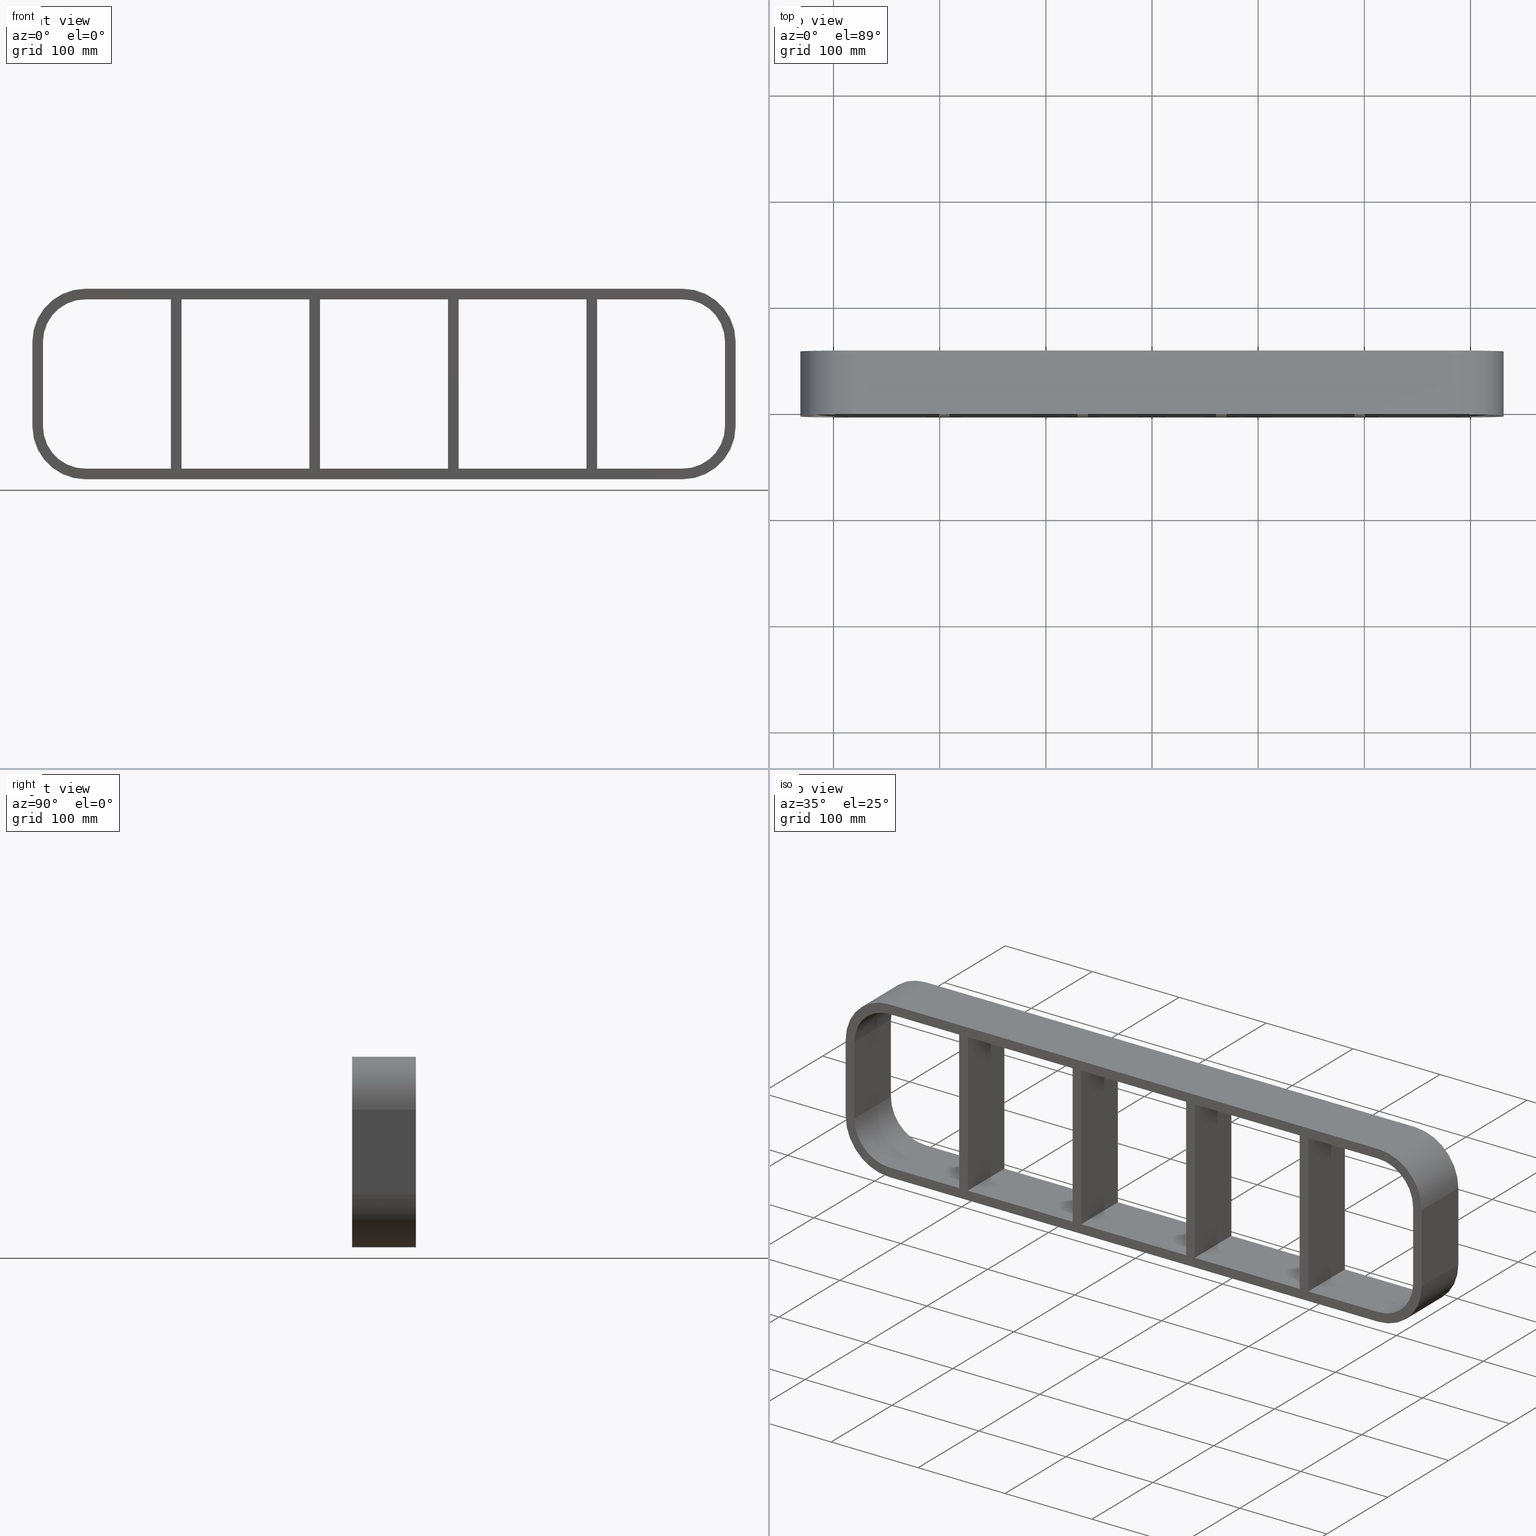
[diagram: canonical four-view strip — front | top / right | iso, engineering-drawing reading convention]
A machine part, canonical four-view strip (front | top / right | iso — engineering-drawing reading convention). The complete STEP part file that produces these views, byte-faithful:
ISO-10303-21;
HEADER;
/****************************************************************
 * Generated by software with PDElib inside                    *
 * PDElib Version v51a, created Wed 11/30/2011                  *
 * ITI Transcendata (http://www.transcendata.com/)              *
 ****************************************************************/
FILE_DESCRIPTION((''),'2;1');
FILE_NAME('N:\\Projects\\Ongoing_Projects\\12403 Transit Designer\\Product-data\\Product Data\\Transit designer Cad Generator\\CreatedFiles\\STEP\\SRCR40-4X5.stp','2014-10-31T13:08:50',(''),(''),'Autodesk Inventor 2013','Autodesk Inventor 2013','');
FILE_SCHEMA(('AUTOMOTIVE_DESIGN { 1 0 10303 214 1 1 1 1 }'));
ENDSEC;
DATA;
#5=APPLICATION_CONTEXT('automotive design');
#6=APPLICATION_PROTOCOL_DEFINITION('International Standard','automotive_design',2001,#5);
#7=PRODUCT_CONTEXT('',#5,'mechanical');
#8=PRODUCT('GH-ISO','GH-ISO',$,(#7));
#9=PRODUCT_RELATED_PRODUCT_CATEGORY('part',$,(#8));
#10=PRODUCT_DEFINITION_FORMATION('',$,#8);
#11=PRODUCT_DEFINITION_CONTEXT('part definition',#5,'design');
#12=PRODUCT_DEFINITION('',$,#10,#11);
#18=(NAMED_UNIT(*)PLANE_ANGLE_UNIT()SI_UNIT($,.RADIAN.));
#19=DIMENSIONAL_EXPONENTS(0.0,0.0,0.0,0.0,0.0,0.0,0.0);
#20=PLANE_ANGLE_MEASURE_WITH_UNIT(PLANE_ANGLE_MEASURE(0.0174532925),#18);
#24=(CONVERSION_BASED_UNIT('DEGREE',#20)NAMED_UNIT(#19)PLANE_ANGLE_UNIT());
#28=(NAMED_UNIT(*)SI_UNIT($,.STERADIAN.)SOLID_ANGLE_UNIT());
#32=(LENGTH_UNIT()NAMED_UNIT(*)SI_UNIT(.MILLI.,.METRE.));
#34=UNCERTAINTY_MEASURE_WITH_UNIT(LENGTH_MEASURE(0.01),#32,'DISTANCE_ACCURACY_VALUE','');
#36=(GEOMETRIC_REPRESENTATION_CONTEXT(3)GLOBAL_UNCERTAINTY_ASSIGNED_CONTEXT((#34))GLOBAL_UNIT_ASSIGNED_CONTEXT((#24,#28,#32))REPRESENTATION_CONTEXT('None','None'));
#37=AXIS2_PLACEMENT_3D('',#38,#39,#40);
#38=CARTESIAN_POINT('',(0.0,0.0,0.0));
#39=DIRECTION('',(0.0,0.0,1.0));
#40=DIRECTION('',(1.0,0.0,0.0));
#41=SHAPE_REPRESENTATION('',(#37),#36);
#42=PRODUCT_DEFINITION_SHAPE('','',#12);
#43=SHAPE_DEFINITION_REPRESENTATION(#42,#41);
#49=(NAMED_UNIT(*)PLANE_ANGLE_UNIT()SI_UNIT($,.RADIAN.));
#50=DIMENSIONAL_EXPONENTS(0.0,0.0,0.0,0.0,0.0,0.0,0.0);
#51=PLANE_ANGLE_MEASURE_WITH_UNIT(PLANE_ANGLE_MEASURE(0.0174532925),#49);
#55=(CONVERSION_BASED_UNIT('DEGREE',#51)NAMED_UNIT(#50)PLANE_ANGLE_UNIT());
#59=(NAMED_UNIT(*)SI_UNIT($,.STERADIAN.)SOLID_ANGLE_UNIT());
#63=(LENGTH_UNIT()NAMED_UNIT(*)SI_UNIT(.MILLI.,.METRE.));
#65=UNCERTAINTY_MEASURE_WITH_UNIT(LENGTH_MEASURE(0.000001),#63,'DISTANCE_ACCURACY_VALUE','');
#67=(GEOMETRIC_REPRESENTATION_CONTEXT(3)GLOBAL_UNCERTAINTY_ASSIGNED_CONTEXT((#65))GLOBAL_UNIT_ASSIGNED_CONTEXT((#55,#59,#63))REPRESENTATION_CONTEXT('','3D'));
#68=CARTESIAN_POINT('',(190.74999999999852,-3.0,-79.750000000000014));
#69=DIRECTION('',(-1.0,0.0,0.0));
#70=DIRECTION('',(0.0,0.0,1.0));
#71=AXIS2_PLACEMENT_3D('',#68,#69,#70);
#72=PLANE('',#71);
#73=CARTESIAN_POINT('',(190.74999999999852,-3.0,-79.750000000000014));
#74=VERTEX_POINT('',#73);
#75=CARTESIAN_POINT('',(190.74999999999852,-3.0,79.750000000000014));
#76=VERTEX_POINT('',#75);
#77=CARTESIAN_POINT('',(190.74999999999852,-3.0,-79.750000000000014));
#78=DIRECTION('',(0.0,0.0,1.0));
#79=VECTOR('',#78,159.50000000000003);
#80=LINE('',#77,#79);
#81=EDGE_CURVE('',#74,#76,#80,.T.);
#82=ORIENTED_EDGE('',*,*,#81,.T.);
#83=CARTESIAN_POINT('',(190.74999999999852,57.0,79.750000000000014));
#84=VERTEX_POINT('',#83);
#85=CARTESIAN_POINT('',(190.74999999999852,57.000000000000007,79.750000000000014));
#86=DIRECTION('',(0.0,-1.0,0.0));
#87=VECTOR('',#86,60.000000000000007);
#88=LINE('',#85,#87);
#89=EDGE_CURVE('',#84,#76,#88,.T.);
#90=ORIENTED_EDGE('',*,*,#89,.F.);
#91=CARTESIAN_POINT('',(190.74999999999852,57.0,-79.750000000000014));
#92=VERTEX_POINT('',#91);
#93=CARTESIAN_POINT('',(190.74999999999852,57.0,-79.750000000000014));
#94=DIRECTION('',(0.0,0.0,1.0));
#95=VECTOR('',#94,159.50000000000003);
#96=LINE('',#93,#95);
#97=EDGE_CURVE('',#92,#84,#96,.T.);
#98=ORIENTED_EDGE('',*,*,#97,.F.);
#99=CARTESIAN_POINT('',(190.74999999999852,-3.0,-79.750000000000014));
#100=DIRECTION('',(0.0,1.0,0.0));
#101=VECTOR('',#100,60.000000000000007);
#102=LINE('',#99,#101);
#103=EDGE_CURVE('',#74,#92,#102,.T.);
#104=ORIENTED_EDGE('',*,*,#103,.F.);
#105=EDGE_LOOP('',(#82,#90,#98,#104));
#106=FACE_OUTER_BOUND('',#105,.T.);
#107=ADVANCED_FACE('',(#106),#72,.T.);
#108=CARTESIAN_POINT('',(200.74999999999278,-3.0,79.750000000000014));
#109=DIRECTION('',(1.0,0.0,0.0));
#110=DIRECTION('',(0.0,0.0,-1.0));
#111=AXIS2_PLACEMENT_3D('',#108,#109,#110);
#112=PLANE('',#111);
#113=CARTESIAN_POINT('',(200.74999999999278,-3.0,79.750000000000014));
#114=VERTEX_POINT('',#113);
#115=CARTESIAN_POINT('',(200.74999999999278,-3.0,-79.749999999985107));
#116=VERTEX_POINT('',#115);
#117=CARTESIAN_POINT('',(200.74999999999278,-3.0,79.750000000000014));
#118=DIRECTION('',(0.0,0.0,-1.0));
#119=VECTOR('',#118,159.49999999998514);
#120=LINE('',#117,#119);
#121=EDGE_CURVE('',#114,#116,#120,.T.);
#122=ORIENTED_EDGE('',*,*,#121,.T.);
#123=CARTESIAN_POINT('',(200.74999999999278,57.0,-79.749999999985107));
#124=VERTEX_POINT('',#123);
#125=CARTESIAN_POINT('',(200.74999999999278,57.000000000000007,-79.750000000000014));
#126=DIRECTION('',(0.0,-1.0,0.0));
#127=VECTOR('',#126,60.000000000000007);
#128=LINE('',#125,#127);
#129=EDGE_CURVE('',#124,#116,#128,.T.);
#130=ORIENTED_EDGE('',*,*,#129,.F.);
#131=CARTESIAN_POINT('',(200.74999999999278,57.0,79.750000000000014));
#132=VERTEX_POINT('',#131);
#133=CARTESIAN_POINT('',(200.74999999999278,57.0,79.750000000000014));
#134=DIRECTION('',(0.0,0.0,-1.0));
#135=VECTOR('',#134,159.49999999998514);
#136=LINE('',#133,#135);
#137=EDGE_CURVE('',#132,#124,#136,.T.);
#138=ORIENTED_EDGE('',*,*,#137,.F.);
#139=CARTESIAN_POINT('',(200.74999999999278,-3.0,79.750000000000014));
#140=DIRECTION('',(0.0,1.0,0.0));
#141=VECTOR('',#140,60.000000000000007);
#142=LINE('',#139,#141);
#143=EDGE_CURVE('',#114,#132,#142,.T.);
#144=ORIENTED_EDGE('',*,*,#143,.F.);
#145=EDGE_LOOP('',(#122,#130,#138,#144));
#146=FACE_OUTER_BOUND('',#145,.T.);
#147=ADVANCED_FACE('',(#146),#112,.T.);
#148=CARTESIAN_POINT('',(60.249999999998494,-3.0,-79.750000000000014));
#149=DIRECTION('',(-1.0,0.0,0.0));
#150=DIRECTION('',(0.0,0.0,1.0));
#151=AXIS2_PLACEMENT_3D('',#148,#149,#150);
#152=PLANE('',#151);
#153=CARTESIAN_POINT('',(60.249999999998494,-3.0,-79.750000000000014));
#154=VERTEX_POINT('',#153);
#155=CARTESIAN_POINT('',(60.249999999998494,-3.0,79.750000000000014));
#156=VERTEX_POINT('',#155);
#157=CARTESIAN_POINT('',(60.249999999998494,-3.0,-79.750000000000014));
#158=DIRECTION('',(0.0,0.0,1.0));
#159=VECTOR('',#158,159.50000000000003);
#160=LINE('',#157,#159);
#161=EDGE_CURVE('',#154,#156,#160,.T.);
#162=ORIENTED_EDGE('',*,*,#161,.T.);
#163=CARTESIAN_POINT('',(60.249999999998494,57.0,79.750000000000014));
#164=VERTEX_POINT('',#163);
#165=CARTESIAN_POINT('',(60.249999999998494,57.000000000000007,79.750000000000014));
#166=DIRECTION('',(0.0,-1.0,0.0));
#167=VECTOR('',#166,60.000000000000007);
#168=LINE('',#165,#167);
#169=EDGE_CURVE('',#164,#156,#168,.T.);
#170=ORIENTED_EDGE('',*,*,#169,.F.);
#171=CARTESIAN_POINT('',(60.249999999998494,57.0,-79.750000000000014));
#172=VERTEX_POINT('',#171);
#173=CARTESIAN_POINT('',(60.249999999998494,57.0,-79.750000000000014));
#174=DIRECTION('',(0.0,0.0,1.0));
#175=VECTOR('',#174,159.50000000000003);
#176=LINE('',#173,#175);
#177=EDGE_CURVE('',#172,#164,#176,.T.);
#178=ORIENTED_EDGE('',*,*,#177,.F.);
#179=CARTESIAN_POINT('',(60.249999999998494,-3.0,-79.750000000000014));
#180=DIRECTION('',(0.0,1.0,0.0));
#181=VECTOR('',#180,60.000000000000007);
#182=LINE('',#179,#181);
#183=EDGE_CURVE('',#154,#172,#182,.T.);
#184=ORIENTED_EDGE('',*,*,#183,.F.);
#185=EDGE_LOOP('',(#162,#170,#178,#184));
#186=FACE_OUTER_BOUND('',#185,.T.);
#187=ADVANCED_FACE('',(#186),#152,.T.);
#188=CARTESIAN_POINT('',(70.249999999992738,-3.0,79.750000000000014));
#189=DIRECTION('',(1.0,0.0,0.0));
#190=DIRECTION('',(0.0,0.0,-1.0));
#191=AXIS2_PLACEMENT_3D('',#188,#189,#190);
#192=PLANE('',#191);
#193=CARTESIAN_POINT('',(70.249999999992738,-3.0,79.750000000000014));
#194=VERTEX_POINT('',#193);
#195=CARTESIAN_POINT('',(70.249999999992738,-3.0,-79.749999999985107));
#196=VERTEX_POINT('',#195);
#197=CARTESIAN_POINT('',(70.249999999992738,-3.0,79.750000000000014));
#198=DIRECTION('',(0.0,0.0,-1.0));
#199=VECTOR('',#198,159.49999999998514);
#200=LINE('',#197,#199);
#201=EDGE_CURVE('',#194,#196,#200,.T.);
#202=ORIENTED_EDGE('',*,*,#201,.T.);
#203=CARTESIAN_POINT('',(70.249999999992738,57.0,-79.749999999985107));
#204=VERTEX_POINT('',#203);
#205=CARTESIAN_POINT('',(70.249999999992738,57.000000000000007,-79.750000000000014));
#206=DIRECTION('',(0.0,-1.0,0.0));
#207=VECTOR('',#206,60.000000000000007);
#208=LINE('',#205,#207);
#209=EDGE_CURVE('',#204,#196,#208,.T.);
#210=ORIENTED_EDGE('',*,*,#209,.F.);
#211=CARTESIAN_POINT('',(70.249999999992738,57.0,79.750000000000014));
#212=VERTEX_POINT('',#211);
#213=CARTESIAN_POINT('',(70.249999999992738,57.0,79.750000000000014));
#214=DIRECTION('',(0.0,0.0,-1.0));
#215=VECTOR('',#214,159.49999999998514);
#216=LINE('',#213,#215);
#217=EDGE_CURVE('',#212,#204,#216,.T.);
#218=ORIENTED_EDGE('',*,*,#217,.F.);
#219=CARTESIAN_POINT('',(70.249999999992738,-3.0,79.750000000000014));
#220=DIRECTION('',(0.0,1.0,0.0));
#221=VECTOR('',#220,60.000000000000007);
#222=LINE('',#219,#221);
#223=EDGE_CURVE('',#194,#212,#222,.T.);
#224=ORIENTED_EDGE('',*,*,#223,.F.);
#225=EDGE_LOOP('',(#202,#210,#218,#224));
#226=FACE_OUTER_BOUND('',#225,.T.);
#227=ADVANCED_FACE('',(#226),#192,.T.);
#228=CARTESIAN_POINT('',(-70.250000000001506,-3.0,-79.750000000000014));
#229=DIRECTION('',(-1.0,0.0,0.0));
#230=DIRECTION('',(0.0,0.0,1.0));
#231=AXIS2_PLACEMENT_3D('',#228,#229,#230);
#232=PLANE('',#231);
#233=CARTESIAN_POINT('',(-70.250000000001506,-3.0,-79.750000000000014));
#234=VERTEX_POINT('',#233);
#235=CARTESIAN_POINT('',(-70.250000000001506,-3.0,79.750000000000014));
#236=VERTEX_POINT('',#235);
#237=CARTESIAN_POINT('',(-70.250000000001506,-3.0,-79.750000000000014));
#238=DIRECTION('',(0.0,0.0,1.0));
#239=VECTOR('',#238,159.50000000000003);
#240=LINE('',#237,#239);
#241=EDGE_CURVE('',#234,#236,#240,.T.);
#242=ORIENTED_EDGE('',*,*,#241,.T.);
#243=CARTESIAN_POINT('',(-70.250000000001506,57.0,79.750000000000014));
#244=VERTEX_POINT('',#243);
#245=CARTESIAN_POINT('',(-70.250000000001492,57.000000000000007,79.750000000000014));
#246=DIRECTION('',(0.0,-1.0,0.0));
#247=VECTOR('',#246,60.000000000000007);
#248=LINE('',#245,#247);
#249=EDGE_CURVE('',#244,#236,#248,.T.);
#250=ORIENTED_EDGE('',*,*,#249,.F.);
#251=CARTESIAN_POINT('',(-70.250000000001506,57.0,-79.750000000000014));
#252=VERTEX_POINT('',#251);
#253=CARTESIAN_POINT('',(-70.250000000001506,57.0,-79.750000000000014));
#254=DIRECTION('',(0.0,0.0,1.0));
#255=VECTOR('',#254,159.50000000000003);
#256=LINE('',#253,#255);
#257=EDGE_CURVE('',#252,#244,#256,.T.);
#258=ORIENTED_EDGE('',*,*,#257,.F.);
#259=CARTESIAN_POINT('',(-70.250000000001492,-3.0,-79.750000000000014));
#260=DIRECTION('',(0.0,1.0,0.0));
#261=VECTOR('',#260,60.000000000000007);
#262=LINE('',#259,#261);
#263=EDGE_CURVE('',#234,#252,#262,.T.);
#264=ORIENTED_EDGE('',*,*,#263,.F.);
#265=EDGE_LOOP('',(#242,#250,#258,#264));
#266=FACE_OUTER_BOUND('',#265,.T.);
#267=ADVANCED_FACE('',(#266),#232,.T.);
#268=CARTESIAN_POINT('',(-60.250000000007269,-3.0,79.750000000000014));
#269=DIRECTION('',(1.0,0.0,0.0));
#270=DIRECTION('',(0.0,0.0,-1.0));
#271=AXIS2_PLACEMENT_3D('',#268,#269,#270);
#272=PLANE('',#271);
#273=CARTESIAN_POINT('',(-60.250000000007269,-3.0,79.750000000000014));
#274=VERTEX_POINT('',#273);
#275=CARTESIAN_POINT('',(-60.250000000007269,-3.0,-79.749999999985107));
#276=VERTEX_POINT('',#275);
#277=CARTESIAN_POINT('',(-60.250000000007269,-3.0,79.750000000000014));
#278=DIRECTION('',(0.0,0.0,-1.0));
#279=VECTOR('',#278,159.49999999998514);
#280=LINE('',#277,#279);
#281=EDGE_CURVE('',#274,#276,#280,.T.);
#282=ORIENTED_EDGE('',*,*,#281,.T.);
#283=CARTESIAN_POINT('',(-60.250000000007269,57.0,-79.749999999985107));
#284=VERTEX_POINT('',#283);
#285=CARTESIAN_POINT('',(-60.25000000000729,57.000000000000007,-79.750000000000014));
#286=DIRECTION('',(0.0,-1.0,0.0));
#287=VECTOR('',#286,60.000000000000007);
#288=LINE('',#285,#287);
#289=EDGE_CURVE('',#284,#276,#288,.T.);
#290=ORIENTED_EDGE('',*,*,#289,.F.);
#291=CARTESIAN_POINT('',(-60.250000000007269,57.0,79.750000000000014));
#292=VERTEX_POINT('',#291);
#293=CARTESIAN_POINT('',(-60.250000000007269,57.0,79.750000000000014));
#294=DIRECTION('',(0.0,0.0,-1.0));
#295=VECTOR('',#294,159.49999999998514);
#296=LINE('',#293,#295);
#297=EDGE_CURVE('',#292,#284,#296,.T.);
#298=ORIENTED_EDGE('',*,*,#297,.F.);
#299=CARTESIAN_POINT('',(-60.25000000000729,-3.0,79.750000000000014));
#300=DIRECTION('',(0.0,1.0,0.0));
#301=VECTOR('',#300,60.000000000000007);
#302=LINE('',#299,#301);
#303=EDGE_CURVE('',#274,#292,#302,.T.);
#304=ORIENTED_EDGE('',*,*,#303,.F.);
#305=EDGE_LOOP('',(#282,#290,#298,#304));
#306=FACE_OUTER_BOUND('',#305,.T.);
#307=ADVANCED_FACE('',(#306),#272,.T.);
#308=CARTESIAN_POINT('',(321.25,0.0,-79.750000000000014));
#309=DIRECTION('',(0.0,0.0,-1.0));
#310=DIRECTION('',(-1.0,0.0,0.0));
#311=AXIS2_PLACEMENT_3D('',#308,#309,#310);
#312=PLANE('',#311);
#313=ORIENTED_EDGE('',*,*,#263,.T.);
#314=CARTESIAN_POINT('',(-190.75000000000728,57.0,-79.749999999985107));
#315=VERTEX_POINT('',#314);
#316=CARTESIAN_POINT('',(-190.75000000000728,57.0,-79.750000000000014));
#317=DIRECTION('',(1.0,0.0,0.0));
#318=VECTOR('',#317,120.50000000000577);
#319=LINE('',#316,#318);
#320=EDGE_CURVE('',#315,#252,#319,.T.);
#321=ORIENTED_EDGE('',*,*,#320,.F.);
#322=CARTESIAN_POINT('',(-190.75000000000728,-3.0,-79.749999999985107));
#323=VERTEX_POINT('',#322);
#324=CARTESIAN_POINT('',(-190.75000000000728,57.000000000000007,-79.750000000000014));
#325=DIRECTION('',(0.0,-1.0,0.0));
#326=VECTOR('',#325,60.000000000000007);
#327=LINE('',#324,#326);
#328=EDGE_CURVE('',#315,#323,#327,.T.);
#329=ORIENTED_EDGE('',*,*,#328,.T.);
#330=CARTESIAN_POINT('',(-70.250000000001506,-3.0,-79.750000000000014));
#331=DIRECTION('',(-1.0,0.0,0.0));
#332=VECTOR('',#331,120.50000000000577);
#333=LINE('',#330,#332);
#334=EDGE_CURVE('',#234,#323,#333,.T.);
#335=ORIENTED_EDGE('',*,*,#334,.F.);
#336=EDGE_LOOP('',(#313,#321,#329,#335));
#337=FACE_OUTER_BOUND('',#336,.T.);
#338=ADVANCED_FACE('',(#337),#312,.F.);
#339=CARTESIAN_POINT('',(321.25,0.0,-79.750000000000014));
#340=DIRECTION('',(0.0,0.0,-1.0));
#341=DIRECTION('',(-1.0,0.0,0.0));
#342=AXIS2_PLACEMENT_3D('',#339,#340,#341);
#343=PLANE('',#342);
#344=ORIENTED_EDGE('',*,*,#183,.T.);
#345=CARTESIAN_POINT('',(-60.250000000007276,57.0,-79.750000000000014));
#346=DIRECTION('',(1.0,0.0,0.0));
#347=VECTOR('',#346,120.50000000000577);
#348=LINE('',#345,#347);
#349=EDGE_CURVE('',#284,#172,#348,.T.);
#350=ORIENTED_EDGE('',*,*,#349,.F.);
#351=ORIENTED_EDGE('',*,*,#289,.T.);
#352=CARTESIAN_POINT('',(60.249999999998494,-3.0,-79.750000000000014));
#353=DIRECTION('',(-1.0,0.0,0.0));
#354=VECTOR('',#353,120.50000000000577);
#355=LINE('',#352,#354);
#356=EDGE_CURVE('',#154,#276,#355,.T.);
#357=ORIENTED_EDGE('',*,*,#356,.F.);
#358=EDGE_LOOP('',(#344,#350,#351,#357));
#359=FACE_OUTER_BOUND('',#358,.T.);
#360=ADVANCED_FACE('',(#359),#343,.F.);
#361=CARTESIAN_POINT('',(321.25,0.0,-79.750000000000014));
#362=DIRECTION('',(0.0,0.0,-1.0));
#363=DIRECTION('',(-1.0,0.0,0.0));
#364=AXIS2_PLACEMENT_3D('',#361,#362,#363);
#365=PLANE('',#364);
#366=ORIENTED_EDGE('',*,*,#103,.T.);
#367=CARTESIAN_POINT('',(70.249999999992738,57.0,-79.750000000000014));
#368=DIRECTION('',(1.0,0.0,0.0));
#369=VECTOR('',#368,120.50000000000578);
#370=LINE('',#367,#369);
#371=EDGE_CURVE('',#204,#92,#370,.T.);
#372=ORIENTED_EDGE('',*,*,#371,.F.);
#373=ORIENTED_EDGE('',*,*,#209,.T.);
#374=CARTESIAN_POINT('',(190.74999999999852,-3.0,-79.750000000000014));
#375=DIRECTION('',(-1.0,0.0,0.0));
#376=VECTOR('',#375,120.50000000000578);
#377=LINE('',#374,#376);
#378=EDGE_CURVE('',#74,#196,#377,.T.);
#379=ORIENTED_EDGE('',*,*,#378,.F.);
#380=EDGE_LOOP('',(#366,#372,#373,#379));
#381=FACE_OUTER_BOUND('',#380,.T.);
#382=ADVANCED_FACE('',(#381),#365,.F.);
#383=CARTESIAN_POINT('',(321.25,0.0,-79.750000000000014));
#384=DIRECTION('',(0.0,0.0,-1.0));
#385=DIRECTION('',(-1.0,0.0,0.0));
#386=AXIS2_PLACEMENT_3D('',#383,#384,#385);
#387=PLANE('',#386);
#388=ORIENTED_EDGE('',*,*,#129,.T.);
#389=CARTESIAN_POINT('',(281.25,-3.0,-79.750000000000014));
#390=VERTEX_POINT('',#389);
#391=CARTESIAN_POINT('',(281.25,-3.0,-79.750000000000014));
#392=DIRECTION('',(-1.0,0.0,0.0));
#393=VECTOR('',#392,80.500000000007219);
#394=LINE('',#391,#393);
#395=EDGE_CURVE('',#390,#116,#394,.T.);
#396=ORIENTED_EDGE('',*,*,#395,.F.);
#397=CARTESIAN_POINT('',(281.25,57.0,-79.750000000000014));
#398=VERTEX_POINT('',#397);
#399=CARTESIAN_POINT('',(281.25,57.0,-79.750000000000014));
#400=DIRECTION('',(0.0,-1.0,0.0));
#401=VECTOR('',#400,60.0);
#402=LINE('',#399,#401);
#403=EDGE_CURVE('',#398,#390,#402,.T.);
#404=ORIENTED_EDGE('',*,*,#403,.F.);
#405=CARTESIAN_POINT('',(200.74999999999278,57.0,-79.750000000000014));
#406=DIRECTION('',(1.0,0.0,0.0));
#407=VECTOR('',#406,80.500000000007219);
#408=LINE('',#405,#407);
#409=EDGE_CURVE('',#124,#398,#408,.T.);
#410=ORIENTED_EDGE('',*,*,#409,.F.);
#411=EDGE_LOOP('',(#388,#396,#404,#410));
#412=FACE_OUTER_BOUND('',#411,.T.);
#413=ADVANCED_FACE('',(#412),#387,.F.);
#414=CARTESIAN_POINT('',(-321.25,0.0,79.750000000000014));
#415=DIRECTION('',(0.0,0.0,1.0));
#416=DIRECTION('',(1.0,0.0,0.0));
#417=AXIS2_PLACEMENT_3D('',#414,#415,#416);
#418=PLANE('',#417);
#419=ORIENTED_EDGE('',*,*,#249,.T.);
#420=CARTESIAN_POINT('',(-190.75000000000728,-3.0,79.750000000000014));
#421=VERTEX_POINT('',#420);
#422=CARTESIAN_POINT('',(-190.75000000000728,-3.0,79.750000000000014));
#423=DIRECTION('',(1.0,0.0,0.0));
#424=VECTOR('',#423,120.50000000000577);
#425=LINE('',#422,#424);
#426=EDGE_CURVE('',#421,#236,#425,.T.);
#427=ORIENTED_EDGE('',*,*,#426,.F.);
#428=CARTESIAN_POINT('',(-190.75000000000728,57.0,79.750000000000014));
#429=VERTEX_POINT('',#428);
#430=CARTESIAN_POINT('',(-190.75000000000728,-3.0,79.750000000000014));
#431=DIRECTION('',(0.0,1.0,0.0));
#432=VECTOR('',#431,60.000000000000007);
#433=LINE('',#430,#432);
#434=EDGE_CURVE('',#421,#429,#433,.T.);
#435=ORIENTED_EDGE('',*,*,#434,.T.);
#436=CARTESIAN_POINT('',(-70.250000000001506,57.0,79.750000000000014));
#437=DIRECTION('',(-1.0,0.0,0.0));
#438=VECTOR('',#437,120.50000000000577);
#439=LINE('',#436,#438);
#440=EDGE_CURVE('',#244,#429,#439,.T.);
#441=ORIENTED_EDGE('',*,*,#440,.F.);
#442=EDGE_LOOP('',(#419,#427,#435,#441));
#443=FACE_OUTER_BOUND('',#442,.T.);
#444=ADVANCED_FACE('',(#443),#418,.F.);
#445=CARTESIAN_POINT('',(-321.25,0.0,79.750000000000014));
#446=DIRECTION('',(0.0,0.0,1.0));
#447=DIRECTION('',(1.0,0.0,0.0));
#448=AXIS2_PLACEMENT_3D('',#445,#446,#447);
#449=PLANE('',#448);
#450=ORIENTED_EDGE('',*,*,#169,.T.);
#451=CARTESIAN_POINT('',(-60.250000000007276,-3.0,79.750000000000014));
#452=DIRECTION('',(1.0,0.0,0.0));
#453=VECTOR('',#452,120.50000000000577);
#454=LINE('',#451,#453);
#455=EDGE_CURVE('',#274,#156,#454,.T.);
#456=ORIENTED_EDGE('',*,*,#455,.F.);
#457=ORIENTED_EDGE('',*,*,#303,.T.);
#458=CARTESIAN_POINT('',(60.249999999998494,57.0,79.750000000000014));
#459=DIRECTION('',(-1.0,0.0,0.0));
#460=VECTOR('',#459,120.50000000000577);
#461=LINE('',#458,#460);
#462=EDGE_CURVE('',#164,#292,#461,.T.);
#463=ORIENTED_EDGE('',*,*,#462,.F.);
#464=EDGE_LOOP('',(#450,#456,#457,#463));
#465=FACE_OUTER_BOUND('',#464,.T.);
#466=ADVANCED_FACE('',(#465),#449,.F.);
#467=CARTESIAN_POINT('',(-321.25,0.0,79.750000000000014));
#468=DIRECTION('',(0.0,0.0,1.0));
#469=DIRECTION('',(1.0,0.0,0.0));
#470=AXIS2_PLACEMENT_3D('',#467,#468,#469);
#471=PLANE('',#470);
#472=ORIENTED_EDGE('',*,*,#143,.T.);
#473=CARTESIAN_POINT('',(281.25,57.0,79.750000000000014));
#474=VERTEX_POINT('',#473);
#475=CARTESIAN_POINT('',(281.25,57.0,79.750000000000014));
#476=DIRECTION('',(-1.0,0.0,0.0));
#477=VECTOR('',#476,80.500000000007219);
#478=LINE('',#475,#477);
#479=EDGE_CURVE('',#474,#132,#478,.T.);
#480=ORIENTED_EDGE('',*,*,#479,.F.);
#481=CARTESIAN_POINT('',(281.25,-3.0,79.750000000000014));
#482=VERTEX_POINT('',#481);
#483=CARTESIAN_POINT('',(281.25,-3.0,79.750000000000014));
#484=DIRECTION('',(0.0,1.0,0.0));
#485=VECTOR('',#484,60.0);
#486=LINE('',#483,#485);
#487=EDGE_CURVE('',#482,#474,#486,.T.);
#488=ORIENTED_EDGE('',*,*,#487,.F.);
#489=CARTESIAN_POINT('',(200.74999999999278,-3.0,79.750000000000014));
#490=DIRECTION('',(1.0,0.0,0.0));
#491=VECTOR('',#490,80.500000000007219);
#492=LINE('',#489,#491);
#493=EDGE_CURVE('',#114,#482,#492,.T.);
#494=ORIENTED_EDGE('',*,*,#493,.F.);
#495=EDGE_LOOP('',(#472,#480,#488,#494));
#496=FACE_OUTER_BOUND('',#495,.T.);
#497=ADVANCED_FACE('',(#496),#471,.F.);
#498=CARTESIAN_POINT('',(-321.25,0.0,79.750000000000014));
#499=DIRECTION('',(0.0,0.0,1.0));
#500=DIRECTION('',(1.0,0.0,0.0));
#501=AXIS2_PLACEMENT_3D('',#498,#499,#500);
#502=PLANE('',#501);
#503=ORIENTED_EDGE('',*,*,#89,.T.);
#504=CARTESIAN_POINT('',(70.249999999992724,-3.0,79.750000000000014));
#505=DIRECTION('',(1.0,0.0,0.0));
#506=VECTOR('',#505,120.5000000000058);
#507=LINE('',#504,#506);
#508=EDGE_CURVE('',#194,#76,#507,.T.);
#509=ORIENTED_EDGE('',*,*,#508,.F.);
#510=ORIENTED_EDGE('',*,*,#223,.T.);
#511=CARTESIAN_POINT('',(190.74999999999852,57.0,79.750000000000014));
#512=DIRECTION('',(-1.0,0.0,0.0));
#513=VECTOR('',#512,120.5000000000058);
#514=LINE('',#511,#513);
#515=EDGE_CURVE('',#84,#212,#514,.T.);
#516=ORIENTED_EDGE('',*,*,#515,.F.);
#517=EDGE_LOOP('',(#503,#509,#510,#516));
#518=FACE_OUTER_BOUND('',#517,.T.);
#519=ADVANCED_FACE('',(#518),#502,.F.);
#520=CARTESIAN_POINT('',(-200.75000000000153,-3.0,-79.750000000000014));
#521=DIRECTION('',(-1.0,0.0,0.0));
#522=DIRECTION('',(0.0,0.0,1.0));
#523=AXIS2_PLACEMENT_3D('',#520,#521,#522);
#524=PLANE('',#523);
#525=CARTESIAN_POINT('',(-200.75000000000153,-3.0,-79.750000000000014));
#526=VERTEX_POINT('',#525);
#527=CARTESIAN_POINT('',(-200.75000000000153,-3.0,79.750000000000014));
#528=VERTEX_POINT('',#527);
#529=CARTESIAN_POINT('',(-200.75000000000153,-3.0,-79.750000000000014));
#530=DIRECTION('',(0.0,0.0,1.0));
#531=VECTOR('',#530,159.50000000000003);
#532=LINE('',#529,#531);
#533=EDGE_CURVE('',#526,#528,#532,.T.);
#534=ORIENTED_EDGE('',*,*,#533,.T.);
#535=CARTESIAN_POINT('',(-200.75000000000153,57.0,79.750000000000014));
#536=VERTEX_POINT('',#535);
#537=CARTESIAN_POINT('',(-200.75000000000153,57.000000000000007,79.750000000000014));
#538=DIRECTION('',(0.0,-1.0,0.0));
#539=VECTOR('',#538,60.000000000000007);
#540=LINE('',#537,#539);
#541=EDGE_CURVE('',#536,#528,#540,.T.);
#542=ORIENTED_EDGE('',*,*,#541,.F.);
#543=CARTESIAN_POINT('',(-200.75000000000153,57.0,-79.750000000000014));
#544=VERTEX_POINT('',#543);
#545=CARTESIAN_POINT('',(-200.75000000000153,57.0,-79.750000000000014));
#546=DIRECTION('',(0.0,0.0,1.0));
#547=VECTOR('',#546,159.50000000000003);
#548=LINE('',#545,#547);
#549=EDGE_CURVE('',#544,#536,#548,.T.);
#550=ORIENTED_EDGE('',*,*,#549,.F.);
#551=CARTESIAN_POINT('',(-200.75000000000153,-3.0,-79.750000000000014));
#552=DIRECTION('',(0.0,1.0,0.0));
#553=VECTOR('',#552,60.000000000000007);
#554=LINE('',#551,#553);
#555=EDGE_CURVE('',#526,#544,#554,.T.);
#556=ORIENTED_EDGE('',*,*,#555,.F.);
#557=EDGE_LOOP('',(#534,#542,#550,#556));
#558=FACE_OUTER_BOUND('',#557,.T.);
#559=ADVANCED_FACE('',(#558),#524,.T.);
#560=CARTESIAN_POINT('',(-190.75000000000728,-3.0,79.750000000000014));
#561=DIRECTION('',(1.0,0.0,0.0));
#562=DIRECTION('',(0.0,0.0,-1.0));
#563=AXIS2_PLACEMENT_3D('',#560,#561,#562);
#564=PLANE('',#563);
#565=CARTESIAN_POINT('',(-190.75000000000728,-3.0,79.750000000000014));
#566=DIRECTION('',(0.0,0.0,-1.0));
#567=VECTOR('',#566,159.49999999998514);
#568=LINE('',#565,#567);
#569=EDGE_CURVE('',#421,#323,#568,.T.);
#570=ORIENTED_EDGE('',*,*,#569,.T.);
#571=ORIENTED_EDGE('',*,*,#328,.F.);
#572=CARTESIAN_POINT('',(-190.75000000000728,57.0,79.750000000000014));
#573=DIRECTION('',(0.0,0.0,-1.0));
#574=VECTOR('',#573,159.49999999998514);
#575=LINE('',#572,#574);
#576=EDGE_CURVE('',#429,#315,#575,.T.);
#577=ORIENTED_EDGE('',*,*,#576,.F.);
#578=ORIENTED_EDGE('',*,*,#434,.F.);
#579=EDGE_LOOP('',(#570,#571,#577,#578));
#580=FACE_OUTER_BOUND('',#579,.T.);
#581=ADVANCED_FACE('',(#580),#564,.T.);
#582=CARTESIAN_POINT('',(321.25,0.0,-79.750000000000014));
#583=DIRECTION('',(0.0,0.0,-1.0));
#584=DIRECTION('',(-1.0,0.0,0.0));
#585=AXIS2_PLACEMENT_3D('',#582,#583,#584);
#586=PLANE('',#585);
#587=ORIENTED_EDGE('',*,*,#555,.T.);
#588=CARTESIAN_POINT('',(-281.25,57.0,-79.750000000000014));
#589=VERTEX_POINT('',#588);
#590=CARTESIAN_POINT('',(-281.25,57.0,-79.750000000000014));
#591=DIRECTION('',(1.0,0.0,0.0));
#592=VECTOR('',#591,80.499999999998465);
#593=LINE('',#590,#592);
#594=EDGE_CURVE('',#589,#544,#593,.T.);
#595=ORIENTED_EDGE('',*,*,#594,.F.);
#596=CARTESIAN_POINT('',(-281.25,-3.0,-79.750000000000014));
#597=VERTEX_POINT('',#596);
#598=CARTESIAN_POINT('',(-281.25,-3.0,-79.750000000000014));
#599=DIRECTION('',(0.0,1.0,0.0));
#600=VECTOR('',#599,60.0);
#601=LINE('',#598,#600);
#602=EDGE_CURVE('',#597,#589,#601,.T.);
#603=ORIENTED_EDGE('',*,*,#602,.F.);
#604=CARTESIAN_POINT('',(-200.75000000000153,-3.0,-79.750000000000014));
#605=DIRECTION('',(-1.0,0.0,0.0));
#606=VECTOR('',#605,80.499999999998465);
#607=LINE('',#604,#606);
#608=EDGE_CURVE('',#526,#597,#607,.T.);
#609=ORIENTED_EDGE('',*,*,#608,.F.);
#610=EDGE_LOOP('',(#587,#595,#603,#609));
#611=FACE_OUTER_BOUND('',#610,.T.);
#612=ADVANCED_FACE('',(#611),#586,.F.);
#613=CARTESIAN_POINT('',(-321.25,0.0,79.750000000000014));
#614=DIRECTION('',(0.0,0.0,1.0));
#615=DIRECTION('',(1.0,0.0,0.0));
#616=AXIS2_PLACEMENT_3D('',#613,#614,#615);
#617=PLANE('',#616);
#618=ORIENTED_EDGE('',*,*,#541,.T.);
#619=CARTESIAN_POINT('',(-281.25,-3.0,79.750000000000014));
#620=VERTEX_POINT('',#619);
#621=CARTESIAN_POINT('',(-281.25,-3.0,79.750000000000014));
#622=DIRECTION('',(1.0,0.0,0.0));
#623=VECTOR('',#622,80.499999999998465);
#624=LINE('',#621,#623);
#625=EDGE_CURVE('',#620,#528,#624,.T.);
#626=ORIENTED_EDGE('',*,*,#625,.F.);
#627=CARTESIAN_POINT('',(-281.25,57.0,79.750000000000014));
#628=VERTEX_POINT('',#627);
#629=CARTESIAN_POINT('',(-281.25,57.0,79.750000000000014));
#630=DIRECTION('',(0.0,-1.0,0.0));
#631=VECTOR('',#630,60.0);
#632=LINE('',#629,#631);
#633=EDGE_CURVE('',#628,#620,#632,.T.);
#634=ORIENTED_EDGE('',*,*,#633,.F.);
#635=CARTESIAN_POINT('',(-200.75000000000153,57.0,79.750000000000014));
#636=DIRECTION('',(-1.0,0.0,0.0));
#637=VECTOR('',#636,80.499999999998465);
#638=LINE('',#635,#637);
#639=EDGE_CURVE('',#536,#628,#638,.T.);
#640=ORIENTED_EDGE('',*,*,#639,.F.);
#641=EDGE_LOOP('',(#618,#626,#634,#640));
#642=FACE_OUTER_BOUND('',#641,.T.);
#643=ADVANCED_FACE('',(#642),#617,.F.);
#644=CARTESIAN_POINT('',(281.25,0.0,-39.750000000000014));
#645=DIRECTION('',(0.0,1.0,0.0));
#646=DIRECTION('',(0.707106781186547,0.0,-0.707106781186547));
#647=AXIS2_PLACEMENT_3D('',#644,#645,#646);
#648=CYLINDRICAL_SURFACE('',#647,49.999999999999993);
#649=CARTESIAN_POINT('',(281.25,57.0,-89.750000000000014));
#650=VERTEX_POINT('',#649);
#651=CARTESIAN_POINT('',(331.25,57.0,-39.750000000000014));
#652=VERTEX_POINT('',#651);
#653=CARTESIAN_POINT('',(281.25,57.0,-39.750000000000014));
#654=DIRECTION('',(0.0,-1.0,0.0));
#655=DIRECTION('',(0.707106781186547,0.0,-0.707106781186547));
#656=AXIS2_PLACEMENT_3D('',#653,#654,#655);
#657=CIRCLE('',#656,49.999999999999986);
#658=EDGE_CURVE('',#650,#652,#657,.T.);
#659=ORIENTED_EDGE('',*,*,#658,.T.);
#660=CARTESIAN_POINT('',(331.25,-3.0,-39.750000000000014));
#661=VERTEX_POINT('',#660);
#662=CARTESIAN_POINT('',(331.25,57.0,-39.750000000000014));
#663=DIRECTION('',(0.0,-1.0,0.0));
#664=VECTOR('',#663,60.0);
#665=LINE('',#662,#664);
#666=EDGE_CURVE('',#652,#661,#665,.T.);
#667=ORIENTED_EDGE('',*,*,#666,.T.);
#668=CARTESIAN_POINT('',(281.25,-3.0,-89.750000000000014));
#669=VERTEX_POINT('',#668);
#670=CARTESIAN_POINT('',(281.25,-3.0,-39.750000000000014));
#671=DIRECTION('',(0.0,1.0,0.0));
#672=DIRECTION('',(0.707106781186547,0.0,-0.707106781186547));
#673=AXIS2_PLACEMENT_3D('',#670,#671,#672);
#674=CIRCLE('',#673,49.999999999999986);
#675=EDGE_CURVE('',#661,#669,#674,.T.);
#676=ORIENTED_EDGE('',*,*,#675,.T.);
#677=CARTESIAN_POINT('',(281.25,-3.0,-89.750000000000014));
#678=DIRECTION('',(0.0,1.0,0.0));
#679=VECTOR('',#678,60.0);
#680=LINE('',#677,#679);
#681=EDGE_CURVE('',#669,#650,#680,.T.);
#682=ORIENTED_EDGE('',*,*,#681,.T.);
#683=EDGE_LOOP('',(#659,#667,#676,#682));
#684=FACE_OUTER_BOUND('',#683,.T.);
#685=ADVANCED_FACE('',(#684),#648,.T.);
#686=CARTESIAN_POINT('',(0.0,-3.0,0.0));
#687=DIRECTION('',(0.0,1.0,0.0));
#688=DIRECTION('',(0.0,0.0,1.0));
#689=AXIS2_PLACEMENT_3D('',#686,#687,#688);
#690=PLANE('',#689);
#691=ORIENTED_EDGE('',*,*,#675,.F.);
#692=CARTESIAN_POINT('',(331.25,-3.0,39.750000000000014));
#693=VERTEX_POINT('',#692);
#694=CARTESIAN_POINT('',(331.25,-3.0,-39.750000000000014));
#695=DIRECTION('',(0.0,0.0,1.0));
#696=VECTOR('',#695,79.500000000000028);
#697=LINE('',#694,#696);
#698=EDGE_CURVE('',#661,#693,#697,.T.);
#699=ORIENTED_EDGE('',*,*,#698,.T.);
#700=CARTESIAN_POINT('',(281.25,-3.0,89.750000000000014));
#701=VERTEX_POINT('',#700);
#702=CARTESIAN_POINT('',(281.25,-3.0,39.750000000000014));
#703=DIRECTION('',(0.0,1.0,0.0));
#704=DIRECTION('',(0.707106781186547,0.0,0.707106781186547));
#705=AXIS2_PLACEMENT_3D('',#702,#703,#704);
#706=CIRCLE('',#705,49.999999999999986);
#707=EDGE_CURVE('',#701,#693,#706,.T.);
#708=ORIENTED_EDGE('',*,*,#707,.F.);
#709=CARTESIAN_POINT('',(-281.25,-3.0,89.750000000000014));
#710=VERTEX_POINT('',#709);
#711=CARTESIAN_POINT('',(281.25,-3.0,89.750000000000014));
#712=DIRECTION('',(-1.0,0.0,0.0));
#713=VECTOR('',#712,562.5);
#714=LINE('',#711,#713);
#715=EDGE_CURVE('',#701,#710,#714,.T.);
#716=ORIENTED_EDGE('',*,*,#715,.T.);
#717=CARTESIAN_POINT('',(-331.25,-3.0,39.750000000000014));
#718=VERTEX_POINT('',#717);
#719=CARTESIAN_POINT('',(-281.25,-3.0,39.750000000000014));
#720=DIRECTION('',(0.0,1.0,0.0));
#721=DIRECTION('',(-0.707106781186547,0.0,0.707106781186547));
#722=AXIS2_PLACEMENT_3D('',#719,#720,#721);
#723=CIRCLE('',#722,49.999999999999986);
#724=EDGE_CURVE('',#718,#710,#723,.T.);
#725=ORIENTED_EDGE('',*,*,#724,.F.);
#726=CARTESIAN_POINT('',(-331.25,-3.0,-39.750000000000014));
#727=VERTEX_POINT('',#726);
#728=CARTESIAN_POINT('',(-331.25,-3.0,39.750000000000014));
#729=DIRECTION('',(0.0,0.0,-1.0));
#730=VECTOR('',#729,79.500000000000028);
#731=LINE('',#728,#730);
#732=EDGE_CURVE('',#718,#727,#731,.T.);
#733=ORIENTED_EDGE('',*,*,#732,.T.);
#734=CARTESIAN_POINT('',(-281.25,-3.0,-89.750000000000014));
#735=VERTEX_POINT('',#734);
#736=CARTESIAN_POINT('',(-281.25,-3.0,-39.750000000000014));
#737=DIRECTION('',(0.0,1.0,0.0));
#738=DIRECTION('',(-0.707106781186547,0.0,-0.707106781186547));
#739=AXIS2_PLACEMENT_3D('',#736,#737,#738);
#740=CIRCLE('',#739,49.999999999999986);
#741=EDGE_CURVE('',#735,#727,#740,.T.);
#742=ORIENTED_EDGE('',*,*,#741,.F.);
#743=CARTESIAN_POINT('',(-281.25,-3.0,-89.750000000000014));
#744=DIRECTION('',(1.0,0.0,0.0));
#745=VECTOR('',#744,562.5);
#746=LINE('',#743,#745);
#747=EDGE_CURVE('',#735,#669,#746,.T.);
#748=ORIENTED_EDGE('',*,*,#747,.T.);
#749=EDGE_LOOP('',(#691,#699,#708,#716,#725,#733,#742,#748));
#750=FACE_OUTER_BOUND('',#749,.T.);
#751=ORIENTED_EDGE('',*,*,#378,.T.);
#752=ORIENTED_EDGE('',*,*,#201,.F.);
#753=ORIENTED_EDGE('',*,*,#508,.T.);
#754=ORIENTED_EDGE('',*,*,#81,.F.);
#755=EDGE_LOOP('',(#751,#752,#753,#754));
#756=FACE_BOUND('',#755,.T.);
#757=ORIENTED_EDGE('',*,*,#356,.T.);
#758=ORIENTED_EDGE('',*,*,#281,.F.);
#759=ORIENTED_EDGE('',*,*,#455,.T.);
#760=ORIENTED_EDGE('',*,*,#161,.F.);
#761=EDGE_LOOP('',(#757,#758,#759,#760));
#762=FACE_BOUND('',#761,.T.);
#763=ORIENTED_EDGE('',*,*,#334,.T.);
#764=ORIENTED_EDGE('',*,*,#569,.F.);
#765=ORIENTED_EDGE('',*,*,#426,.T.);
#766=ORIENTED_EDGE('',*,*,#241,.F.);
#767=EDGE_LOOP('',(#763,#764,#765,#766));
#768=FACE_BOUND('',#767,.T.);
#769=ORIENTED_EDGE('',*,*,#608,.T.);
#770=CARTESIAN_POINT('',(-321.25,-3.0,-39.750000000000014));
#771=VERTEX_POINT('',#770);
#772=CARTESIAN_POINT('',(-281.25,-3.0,-39.750000000000014));
#773=DIRECTION('',(0.0,-1.0,0.0));
#774=DIRECTION('',(-0.707106781186547,0.0,-0.707106781186547));
#775=AXIS2_PLACEMENT_3D('',#772,#773,#774);
#776=CIRCLE('',#775,39.999999999999993);
#777=EDGE_CURVE('',#771,#597,#776,.T.);
#778=ORIENTED_EDGE('',*,*,#777,.F.);
#779=CARTESIAN_POINT('',(-321.25,-3.0,39.750000000000014));
#780=VERTEX_POINT('',#779);
#781=CARTESIAN_POINT('',(-321.25,-3.0,-39.750000000000014));
#782=DIRECTION('',(0.0,0.0,1.0));
#783=VECTOR('',#782,79.500000000000028);
#784=LINE('',#781,#783);
#785=EDGE_CURVE('',#771,#780,#784,.T.);
#786=ORIENTED_EDGE('',*,*,#785,.T.);
#787=CARTESIAN_POINT('',(-281.25,-3.0,39.750000000000014));
#788=DIRECTION('',(0.0,-1.0,0.0));
#789=DIRECTION('',(-0.707106781186547,0.0,0.707106781186547));
#790=AXIS2_PLACEMENT_3D('',#787,#788,#789);
#791=CIRCLE('',#790,39.999999999999993);
#792=EDGE_CURVE('',#620,#780,#791,.T.);
#793=ORIENTED_EDGE('',*,*,#792,.F.);
#794=ORIENTED_EDGE('',*,*,#625,.T.);
#795=ORIENTED_EDGE('',*,*,#533,.F.);
#796=EDGE_LOOP('',(#769,#778,#786,#793,#794,#795));
#797=FACE_BOUND('',#796,.T.);
#798=ORIENTED_EDGE('',*,*,#121,.F.);
#799=ORIENTED_EDGE('',*,*,#493,.T.);
#800=CARTESIAN_POINT('',(321.25,-3.0,39.750000000000014));
#801=VERTEX_POINT('',#800);
#802=CARTESIAN_POINT('',(281.25,-3.0,39.750000000000014));
#803=DIRECTION('',(0.0,-1.0,0.0));
#804=DIRECTION('',(0.707106781186547,0.0,0.707106781186547));
#805=AXIS2_PLACEMENT_3D('',#802,#803,#804);
#806=CIRCLE('',#805,39.999999999999993);
#807=EDGE_CURVE('',#801,#482,#806,.T.);
#808=ORIENTED_EDGE('',*,*,#807,.F.);
#809=CARTESIAN_POINT('',(321.25,-3.0,-39.750000000000014));
#810=VERTEX_POINT('',#809);
#811=CARTESIAN_POINT('',(321.25,-3.0,39.750000000000014));
#812=DIRECTION('',(0.0,0.0,-1.0));
#813=VECTOR('',#812,79.500000000000028);
#814=LINE('',#811,#813);
#815=EDGE_CURVE('',#801,#810,#814,.T.);
#816=ORIENTED_EDGE('',*,*,#815,.T.);
#817=CARTESIAN_POINT('',(281.25,-3.0,-39.750000000000014));
#818=DIRECTION('',(0.0,-1.0,0.0));
#819=DIRECTION('',(0.707106781186547,0.0,-0.707106781186547));
#820=AXIS2_PLACEMENT_3D('',#817,#818,#819);
#821=CIRCLE('',#820,39.999999999999993);
#822=EDGE_CURVE('',#390,#810,#821,.T.);
#823=ORIENTED_EDGE('',*,*,#822,.F.);
#824=ORIENTED_EDGE('',*,*,#395,.T.);
#825=EDGE_LOOP('',(#798,#799,#808,#816,#823,#824));
#826=FACE_BOUND('',#825,.T.);
#827=ADVANCED_FACE('',(#750,#756,#762,#768,#797,#826),#690,.F.);
#828=CARTESIAN_POINT('',(331.25,0.0,89.750000000000014));
#829=DIRECTION('',(1.0,0.0,0.0));
#830=DIRECTION('',(0.0,0.0,-1.0));
#831=AXIS2_PLACEMENT_3D('',#828,#829,#830);
#832=PLANE('',#831);
#833=ORIENTED_EDGE('',*,*,#666,.F.);
#834=CARTESIAN_POINT('',(331.25,57.0,39.750000000000014));
#835=VERTEX_POINT('',#834);
#836=CARTESIAN_POINT('',(331.25,57.0,39.750000000000014));
#837=DIRECTION('',(0.0,0.0,-1.0));
#838=VECTOR('',#837,79.500000000000028);
#839=LINE('',#836,#838);
#840=EDGE_CURVE('',#835,#652,#839,.T.);
#841=ORIENTED_EDGE('',*,*,#840,.F.);
#842=CARTESIAN_POINT('',(331.25,-3.0,39.750000000000014));
#843=DIRECTION('',(0.0,1.0,0.0));
#844=VECTOR('',#843,60.0);
#845=LINE('',#842,#844);
#846=EDGE_CURVE('',#693,#835,#845,.T.);
#847=ORIENTED_EDGE('',*,*,#846,.F.);
#848=ORIENTED_EDGE('',*,*,#698,.F.);
#849=EDGE_LOOP('',(#833,#841,#847,#848));
#850=FACE_OUTER_BOUND('',#849,.T.);
#851=ADVANCED_FACE('',(#850),#832,.T.);
#852=CARTESIAN_POINT('',(281.25,0.0,39.750000000000014));
#853=DIRECTION('',(0.0,-1.0,0.0));
#854=DIRECTION('',(0.707106781186547,0.0,0.707106781186547));
#855=AXIS2_PLACEMENT_3D('',#852,#853,#854);
#856=CYLINDRICAL_SURFACE('',#855,49.999999999999993);
#857=ORIENTED_EDGE('',*,*,#707,.T.);
#858=ORIENTED_EDGE('',*,*,#846,.T.);
#859=CARTESIAN_POINT('',(281.25,57.0,89.750000000000014));
#860=VERTEX_POINT('',#859);
#861=CARTESIAN_POINT('',(281.25,57.0,39.750000000000014));
#862=DIRECTION('',(0.0,-1.0,0.0));
#863=DIRECTION('',(0.707106781186547,0.0,0.707106781186547));
#864=AXIS2_PLACEMENT_3D('',#861,#862,#863);
#865=CIRCLE('',#864,49.999999999999986);
#866=EDGE_CURVE('',#835,#860,#865,.T.);
#867=ORIENTED_EDGE('',*,*,#866,.T.);
#868=CARTESIAN_POINT('',(281.25,57.0,89.750000000000014));
#869=DIRECTION('',(0.0,-1.0,0.0));
#870=VECTOR('',#869,60.0);
#871=LINE('',#868,#870);
#872=EDGE_CURVE('',#860,#701,#871,.T.);
#873=ORIENTED_EDGE('',*,*,#872,.T.);
#874=EDGE_LOOP('',(#857,#858,#867,#873));
#875=FACE_OUTER_BOUND('',#874,.T.);
#876=ADVANCED_FACE('',(#875),#856,.T.);
#877=CARTESIAN_POINT('',(-281.25,0.0,-39.750000000000014));
#878=DIRECTION('',(0.0,1.0,0.0));
#879=DIRECTION('',(-0.707106781186547,0.0,-0.707106781186547));
#880=AXIS2_PLACEMENT_3D('',#877,#878,#879);
#881=CYLINDRICAL_SURFACE('',#880,49.999999999999993);
#882=CARTESIAN_POINT('',(-331.25,57.0,-39.750000000000014));
#883=VERTEX_POINT('',#882);
#884=CARTESIAN_POINT('',(-281.25,57.0,-89.750000000000014));
#885=VERTEX_POINT('',#884);
#886=CARTESIAN_POINT('',(-281.25,57.0,-39.750000000000014));
#887=DIRECTION('',(0.0,-1.0,0.0));
#888=DIRECTION('',(-0.707106781186547,0.0,-0.707106781186547));
#889=AXIS2_PLACEMENT_3D('',#886,#887,#888);
#890=CIRCLE('',#889,49.999999999999986);
#891=EDGE_CURVE('',#883,#885,#890,.T.);
#892=ORIENTED_EDGE('',*,*,#891,.T.);
#893=CARTESIAN_POINT('',(-281.25,57.0,-89.750000000000014));
#894=DIRECTION('',(0.0,-1.0,0.0));
#895=VECTOR('',#894,60.0);
#896=LINE('',#893,#895);
#897=EDGE_CURVE('',#885,#735,#896,.T.);
#898=ORIENTED_EDGE('',*,*,#897,.T.);
#899=ORIENTED_EDGE('',*,*,#741,.T.);
#900=CARTESIAN_POINT('',(-331.25,-3.0,-39.750000000000014));
#901=DIRECTION('',(0.0,1.0,0.0));
#902=VECTOR('',#901,60.0);
#903=LINE('',#900,#902);
#904=EDGE_CURVE('',#727,#883,#903,.T.);
#905=ORIENTED_EDGE('',*,*,#904,.T.);
#906=EDGE_LOOP('',(#892,#898,#899,#905));
#907=FACE_OUTER_BOUND('',#906,.T.);
#908=ADVANCED_FACE('',(#907),#881,.T.);
#909=CARTESIAN_POINT('',(-331.25,0.0,-89.750000000000014));
#910=DIRECTION('',(-1.0,0.0,0.0));
#911=DIRECTION('',(0.0,0.0,1.0));
#912=AXIS2_PLACEMENT_3D('',#909,#910,#911);
#913=PLANE('',#912);
#914=ORIENTED_EDGE('',*,*,#904,.F.);
#915=ORIENTED_EDGE('',*,*,#732,.F.);
#916=CARTESIAN_POINT('',(-331.25,57.0,39.750000000000014));
#917=VERTEX_POINT('',#916);
#918=CARTESIAN_POINT('',(-331.25,57.0,39.750000000000014));
#919=DIRECTION('',(0.0,-1.0,0.0));
#920=VECTOR('',#919,60.0);
#921=LINE('',#918,#920);
#922=EDGE_CURVE('',#917,#718,#921,.T.);
#923=ORIENTED_EDGE('',*,*,#922,.F.);
#924=CARTESIAN_POINT('',(-331.25,57.0,-39.750000000000014));
#925=DIRECTION('',(0.0,0.0,1.0));
#926=VECTOR('',#925,79.500000000000028);
#927=LINE('',#924,#926);
#928=EDGE_CURVE('',#883,#917,#927,.T.);
#929=ORIENTED_EDGE('',*,*,#928,.F.);
#930=EDGE_LOOP('',(#914,#915,#923,#929));
#931=FACE_OUTER_BOUND('',#930,.T.);
#932=ADVANCED_FACE('',(#931),#913,.T.);
#933=CARTESIAN_POINT('',(-281.25,0.0,39.750000000000014));
#934=DIRECTION('',(0.0,1.0,0.0));
#935=DIRECTION('',(-0.707106781186547,0.0,0.707106781186547));
#936=AXIS2_PLACEMENT_3D('',#933,#934,#935);
#937=CYLINDRICAL_SURFACE('',#936,49.999999999999993);
#938=CARTESIAN_POINT('',(-281.25,57.0,89.750000000000014));
#939=VERTEX_POINT('',#938);
#940=CARTESIAN_POINT('',(-281.25,57.0,39.750000000000014));
#941=DIRECTION('',(0.0,-1.0,0.0));
#942=DIRECTION('',(-0.707106781186547,0.0,0.707106781186547));
#943=AXIS2_PLACEMENT_3D('',#940,#941,#942);
#944=CIRCLE('',#943,49.999999999999986);
#945=EDGE_CURVE('',#939,#917,#944,.T.);
#946=ORIENTED_EDGE('',*,*,#945,.T.);
#947=ORIENTED_EDGE('',*,*,#922,.T.);
#948=ORIENTED_EDGE('',*,*,#724,.T.);
#949=CARTESIAN_POINT('',(-281.25,-3.0,89.750000000000014));
#950=DIRECTION('',(0.0,1.0,0.0));
#951=VECTOR('',#950,60.0);
#952=LINE('',#949,#951);
#953=EDGE_CURVE('',#710,#939,#952,.T.);
#954=ORIENTED_EDGE('',*,*,#953,.T.);
#955=EDGE_LOOP('',(#946,#947,#948,#954));
#956=FACE_OUTER_BOUND('',#955,.T.);
#957=ADVANCED_FACE('',(#956),#937,.T.);
#958=CARTESIAN_POINT('',(-331.25,0.0,89.750000000000014));
#959=DIRECTION('',(0.0,0.0,1.0));
#960=DIRECTION('',(1.0,0.0,0.0));
#961=AXIS2_PLACEMENT_3D('',#958,#959,#960);
#962=PLANE('',#961);
#963=ORIENTED_EDGE('',*,*,#872,.F.);
#964=CARTESIAN_POINT('',(-281.25,57.0,89.750000000000014));
#965=DIRECTION('',(1.0,0.0,0.0));
#966=VECTOR('',#965,562.5);
#967=LINE('',#964,#966);
#968=EDGE_CURVE('',#939,#860,#967,.T.);
#969=ORIENTED_EDGE('',*,*,#968,.F.);
#970=ORIENTED_EDGE('',*,*,#953,.F.);
#971=ORIENTED_EDGE('',*,*,#715,.F.);
#972=EDGE_LOOP('',(#963,#969,#970,#971));
#973=FACE_OUTER_BOUND('',#972,.T.);
#974=ADVANCED_FACE('',(#973),#962,.T.);
#975=CARTESIAN_POINT('',(-281.25,0.0,39.750000000000014));
#976=DIRECTION('',(0.0,1.0,0.0));
#977=DIRECTION('',(-0.707106781186547,0.0,0.707106781186547));
#978=AXIS2_PLACEMENT_3D('',#975,#976,#977);
#979=CYLINDRICAL_SURFACE('',#978,40.0);
#980=ORIENTED_EDGE('',*,*,#792,.T.);
#981=CARTESIAN_POINT('',(-321.25,57.0,39.750000000000014));
#982=VERTEX_POINT('',#981);
#983=CARTESIAN_POINT('',(-321.25,-3.0,39.750000000000014));
#984=DIRECTION('',(0.0,1.0,0.0));
#985=VECTOR('',#984,60.0);
#986=LINE('',#983,#985);
#987=EDGE_CURVE('',#780,#982,#986,.T.);
#988=ORIENTED_EDGE('',*,*,#987,.T.);
#989=CARTESIAN_POINT('',(-281.25,57.0,39.750000000000014));
#990=DIRECTION('',(0.0,1.0,0.0));
#991=DIRECTION('',(-0.707106781186547,0.0,0.707106781186547));
#992=AXIS2_PLACEMENT_3D('',#989,#990,#991);
#993=CIRCLE('',#992,39.999999999999993);
#994=EDGE_CURVE('',#982,#628,#993,.T.);
#995=ORIENTED_EDGE('',*,*,#994,.T.);
#996=ORIENTED_EDGE('',*,*,#633,.T.);
#997=EDGE_LOOP('',(#980,#988,#995,#996));
#998=FACE_OUTER_BOUND('',#997,.T.);
#999=ADVANCED_FACE('',(#998),#979,.F.);
#1000=CARTESIAN_POINT('',(-321.25,0.0,-79.750000000000014));
#1001=DIRECTION('',(-1.0,0.0,0.0));
#1002=DIRECTION('',(0.0,0.0,1.0));
#1003=AXIS2_PLACEMENT_3D('',#1000,#1001,#1002);
#1004=PLANE('',#1003);
#1005=ORIENTED_EDGE('',*,*,#987,.F.);
#1006=ORIENTED_EDGE('',*,*,#785,.F.);
#1007=CARTESIAN_POINT('',(-321.25,57.0,-39.750000000000014));
#1008=VERTEX_POINT('',#1007);
#1009=CARTESIAN_POINT('',(-321.25,57.0,-39.750000000000014));
#1010=DIRECTION('',(0.0,-1.0,0.0));
#1011=VECTOR('',#1010,60.0);
#1012=LINE('',#1009,#1011);
#1013=EDGE_CURVE('',#1008,#771,#1012,.T.);
#1014=ORIENTED_EDGE('',*,*,#1013,.F.);
#1015=CARTESIAN_POINT('',(-321.25,57.0,39.750000000000021));
#1016=DIRECTION('',(0.0,0.0,-1.0));
#1017=VECTOR('',#1016,79.500000000000028);
#1018=LINE('',#1015,#1017);
#1019=EDGE_CURVE('',#982,#1008,#1018,.T.);
#1020=ORIENTED_EDGE('',*,*,#1019,.F.);
#1021=EDGE_LOOP('',(#1005,#1006,#1014,#1020));
#1022=FACE_OUTER_BOUND('',#1021,.T.);
#1023=ADVANCED_FACE('',(#1022),#1004,.F.);
#1024=CARTESIAN_POINT('',(281.25,0.0,39.750000000000014));
#1025=DIRECTION('',(0.0,1.0,0.0));
#1026=DIRECTION('',(0.707106781186547,0.0,0.707106781186547));
#1027=AXIS2_PLACEMENT_3D('',#1024,#1025,#1026);
#1028=CYLINDRICAL_SURFACE('',#1027,40.0);
#1029=ORIENTED_EDGE('',*,*,#807,.T.);
#1030=ORIENTED_EDGE('',*,*,#487,.T.);
#1031=CARTESIAN_POINT('',(321.25,57.0,39.750000000000014));
#1032=VERTEX_POINT('',#1031);
#1033=CARTESIAN_POINT('',(281.25,57.0,39.750000000000014));
#1034=DIRECTION('',(0.0,1.0,0.0));
#1035=DIRECTION('',(0.707106781186547,0.0,0.707106781186547));
#1036=AXIS2_PLACEMENT_3D('',#1033,#1034,#1035);
#1037=CIRCLE('',#1036,39.999999999999993);
#1038=EDGE_CURVE('',#474,#1032,#1037,.T.);
#1039=ORIENTED_EDGE('',*,*,#1038,.T.);
#1040=CARTESIAN_POINT('',(321.25,57.0,39.750000000000014));
#1041=DIRECTION('',(0.0,-1.0,0.0));
#1042=VECTOR('',#1041,60.0);
#1043=LINE('',#1040,#1042);
#1044=EDGE_CURVE('',#1032,#801,#1043,.T.);
#1045=ORIENTED_EDGE('',*,*,#1044,.T.);
#1046=EDGE_LOOP('',(#1029,#1030,#1039,#1045));
#1047=FACE_OUTER_BOUND('',#1046,.T.);
#1048=ADVANCED_FACE('',(#1047),#1028,.F.);
#1049=CARTESIAN_POINT('',(-281.25,0.0,-39.750000000000014));
#1050=DIRECTION('',(0.0,1.0,0.0));
#1051=DIRECTION('',(-0.707106781186547,0.0,-0.707106781186547));
#1052=AXIS2_PLACEMENT_3D('',#1049,#1050,#1051);
#1053=CYLINDRICAL_SURFACE('',#1052,40.0);
#1054=ORIENTED_EDGE('',*,*,#777,.T.);
#1055=ORIENTED_EDGE('',*,*,#602,.T.);
#1056=CARTESIAN_POINT('',(-281.25,57.0,-39.750000000000014));
#1057=DIRECTION('',(0.0,1.0,0.0));
#1058=DIRECTION('',(-0.707106781186547,0.0,-0.707106781186547));
#1059=AXIS2_PLACEMENT_3D('',#1056,#1057,#1058);
#1060=CIRCLE('',#1059,39.999999999999993);
#1061=EDGE_CURVE('',#589,#1008,#1060,.T.);
#1062=ORIENTED_EDGE('',*,*,#1061,.T.);
#1063=ORIENTED_EDGE('',*,*,#1013,.T.);
#1064=EDGE_LOOP('',(#1054,#1055,#1062,#1063));
#1065=FACE_OUTER_BOUND('',#1064,.T.);
#1066=ADVANCED_FACE('',(#1065),#1053,.F.);
#1067=CARTESIAN_POINT('',(281.25,0.0,-39.750000000000014));
#1068=DIRECTION('',(0.0,-1.0,0.0));
#1069=DIRECTION('',(0.707106781186547,0.0,-0.707106781186547));
#1070=AXIS2_PLACEMENT_3D('',#1067,#1068,#1069);
#1071=CYLINDRICAL_SURFACE('',#1070,40.0);
#1072=CARTESIAN_POINT('',(321.25,57.0,-39.750000000000014));
#1073=VERTEX_POINT('',#1072);
#1074=CARTESIAN_POINT('',(281.25,57.0,-39.750000000000014));
#1075=DIRECTION('',(0.0,1.0,0.0));
#1076=DIRECTION('',(0.707106781186547,0.0,-0.707106781186547));
#1077=AXIS2_PLACEMENT_3D('',#1074,#1075,#1076);
#1078=CIRCLE('',#1077,39.999999999999993);
#1079=EDGE_CURVE('',#1073,#398,#1078,.T.);
#1080=ORIENTED_EDGE('',*,*,#1079,.T.);
#1081=ORIENTED_EDGE('',*,*,#403,.T.);
#1082=ORIENTED_EDGE('',*,*,#822,.T.);
#1083=CARTESIAN_POINT('',(321.25,-3.0,-39.750000000000014));
#1084=DIRECTION('',(0.0,1.0,0.0));
#1085=VECTOR('',#1084,60.0);
#1086=LINE('',#1083,#1085);
#1087=EDGE_CURVE('',#810,#1073,#1086,.T.);
#1088=ORIENTED_EDGE('',*,*,#1087,.T.);
#1089=EDGE_LOOP('',(#1080,#1081,#1082,#1088));
#1090=FACE_OUTER_BOUND('',#1089,.T.);
#1091=ADVANCED_FACE('',(#1090),#1071,.F.);
#1092=CARTESIAN_POINT('',(321.25,0.0,79.750000000000014));
#1093=DIRECTION('',(1.0,0.0,0.0));
#1094=DIRECTION('',(0.0,0.0,-1.0));
#1095=AXIS2_PLACEMENT_3D('',#1092,#1093,#1094);
#1096=PLANE('',#1095);
#1097=ORIENTED_EDGE('',*,*,#1044,.F.);
#1098=CARTESIAN_POINT('',(321.25,57.0,-39.750000000000021));
#1099=DIRECTION('',(0.0,0.0,1.0));
#1100=VECTOR('',#1099,79.500000000000028);
#1101=LINE('',#1098,#1100);
#1102=EDGE_CURVE('',#1073,#1032,#1101,.T.);
#1103=ORIENTED_EDGE('',*,*,#1102,.F.);
#1104=ORIENTED_EDGE('',*,*,#1087,.F.);
#1105=ORIENTED_EDGE('',*,*,#815,.F.);
#1106=EDGE_LOOP('',(#1097,#1103,#1104,#1105));
#1107=FACE_OUTER_BOUND('',#1106,.T.);
#1108=ADVANCED_FACE('',(#1107),#1096,.F.);
#1109=CARTESIAN_POINT('',(331.25,0.0,-89.750000000000014));
#1110=DIRECTION('',(0.0,0.0,-1.0));
#1111=DIRECTION('',(-1.0,0.0,0.0));
#1112=AXIS2_PLACEMENT_3D('',#1109,#1110,#1111);
#1113=PLANE('',#1112);
#1114=ORIENTED_EDGE('',*,*,#681,.F.);
#1115=ORIENTED_EDGE('',*,*,#747,.F.);
#1116=ORIENTED_EDGE('',*,*,#897,.F.);
#1117=CARTESIAN_POINT('',(281.25,57.0,-89.750000000000014));
#1118=DIRECTION('',(-1.0,0.0,0.0));
#1119=VECTOR('',#1118,562.5);
#1120=LINE('',#1117,#1119);
#1121=EDGE_CURVE('',#650,#885,#1120,.T.);
#1122=ORIENTED_EDGE('',*,*,#1121,.F.);
#1123=EDGE_LOOP('',(#1114,#1115,#1116,#1122));
#1124=FACE_OUTER_BOUND('',#1123,.T.);
#1125=ADVANCED_FACE('',(#1124),#1113,.T.);
#1126=CARTESIAN_POINT('',(0.0,57.0,0.0));
#1127=DIRECTION('',(0.0,1.0,0.0));
#1128=DIRECTION('',(0.0,0.0,1.0));
#1129=AXIS2_PLACEMENT_3D('',#1126,#1127,#1128);
#1130=PLANE('',#1129);
#1131=ORIENTED_EDGE('',*,*,#658,.F.);
#1132=ORIENTED_EDGE('',*,*,#1121,.T.);
#1133=ORIENTED_EDGE('',*,*,#891,.F.);
#1134=ORIENTED_EDGE('',*,*,#928,.T.);
#1135=ORIENTED_EDGE('',*,*,#945,.F.);
#1136=ORIENTED_EDGE('',*,*,#968,.T.);
#1137=ORIENTED_EDGE('',*,*,#866,.F.);
#1138=ORIENTED_EDGE('',*,*,#840,.T.);
#1139=EDGE_LOOP('',(#1131,#1132,#1133,#1134,#1135,#1136,#1137,#1138));
#1140=FACE_OUTER_BOUND('',#1139,.T.);
#1141=ORIENTED_EDGE('',*,*,#409,.T.);
#1142=ORIENTED_EDGE('',*,*,#1079,.F.);
#1143=ORIENTED_EDGE('',*,*,#1102,.T.);
#1144=ORIENTED_EDGE('',*,*,#1038,.F.);
#1145=ORIENTED_EDGE('',*,*,#479,.T.);
#1146=ORIENTED_EDGE('',*,*,#137,.T.);
#1147=EDGE_LOOP('',(#1141,#1142,#1143,#1144,#1145,#1146));
#1148=FACE_BOUND('',#1147,.T.);
#1149=ORIENTED_EDGE('',*,*,#97,.T.);
#1150=ORIENTED_EDGE('',*,*,#515,.T.);
#1151=ORIENTED_EDGE('',*,*,#217,.T.);
#1152=ORIENTED_EDGE('',*,*,#371,.T.);
#1153=EDGE_LOOP('',(#1149,#1150,#1151,#1152));
#1154=FACE_BOUND('',#1153,.T.);
#1155=ORIENTED_EDGE('',*,*,#177,.T.);
#1156=ORIENTED_EDGE('',*,*,#462,.T.);
#1157=ORIENTED_EDGE('',*,*,#297,.T.);
#1158=ORIENTED_EDGE('',*,*,#349,.T.);
#1159=EDGE_LOOP('',(#1155,#1156,#1157,#1158));
#1160=FACE_BOUND('',#1159,.T.);
#1161=ORIENTED_EDGE('',*,*,#257,.T.);
#1162=ORIENTED_EDGE('',*,*,#440,.T.);
#1163=ORIENTED_EDGE('',*,*,#576,.T.);
#1164=ORIENTED_EDGE('',*,*,#320,.T.);
#1165=EDGE_LOOP('',(#1161,#1162,#1163,#1164));
#1166=FACE_BOUND('',#1165,.T.);
#1167=ORIENTED_EDGE('',*,*,#549,.T.);
#1168=ORIENTED_EDGE('',*,*,#639,.T.);
#1169=ORIENTED_EDGE('',*,*,#994,.F.);
#1170=ORIENTED_EDGE('',*,*,#1019,.T.);
#1171=ORIENTED_EDGE('',*,*,#1061,.F.);
#1172=ORIENTED_EDGE('',*,*,#594,.T.);
#1173=EDGE_LOOP('',(#1167,#1168,#1169,#1170,#1171,#1172));
#1174=FACE_BOUND('',#1173,.T.);
#1175=ADVANCED_FACE('',(#1140,#1148,#1154,#1160,#1166,#1174),#1130,.T.);
#1176=CLOSED_SHELL('',(#107,#147,#187,#227,#267,#307,#338,#360,#382,#413,#444,#466,#497,#519,#559,#581,#612,#643,#685,#827,#851,#876,#908,#932,#957,#974,#999,#1023,#1048,#1066,#1091,#1108,#1125,#1175));
#1177=MANIFOLD_SOLID_BREP('Solid1',#1176);
#1178=COLOUR_RGB('Silicon Nitride - Polished',0.800000011920929,0.796078443527222,0.701960802078247);
#1179=FILL_AREA_STYLE_COLOUR('Silicon Nitride - Polished',#1178);
#1180=FILL_AREA_STYLE('Silicon Nitride - Polished',(#1179));
#1181=SURFACE_STYLE_FILL_AREA(#1180);
#1182=SURFACE_SIDE_STYLE('Silicon Nitride - Polished',(#1181));
#1183=SURFACE_STYLE_USAGE(.BOTH.,#1182);
#1184=PRESENTATION_STYLE_ASSIGNMENT((#1183));
#1185=STYLED_ITEM('',(#1184),#1177);
#1186=MECHANICAL_DESIGN_GEOMETRIC_PRESENTATION_REPRESENTATION('',(#1185),#36);
#1187=ADVANCED_BREP_SHAPE_REPRESENTATION('ABSR',(#1177),#36);
#1188=SHAPE_REPRESENTATION_RELATIONSHIP('SRR','None',#1187,#41);
ENDSEC;
END-ISO-10303-21;
